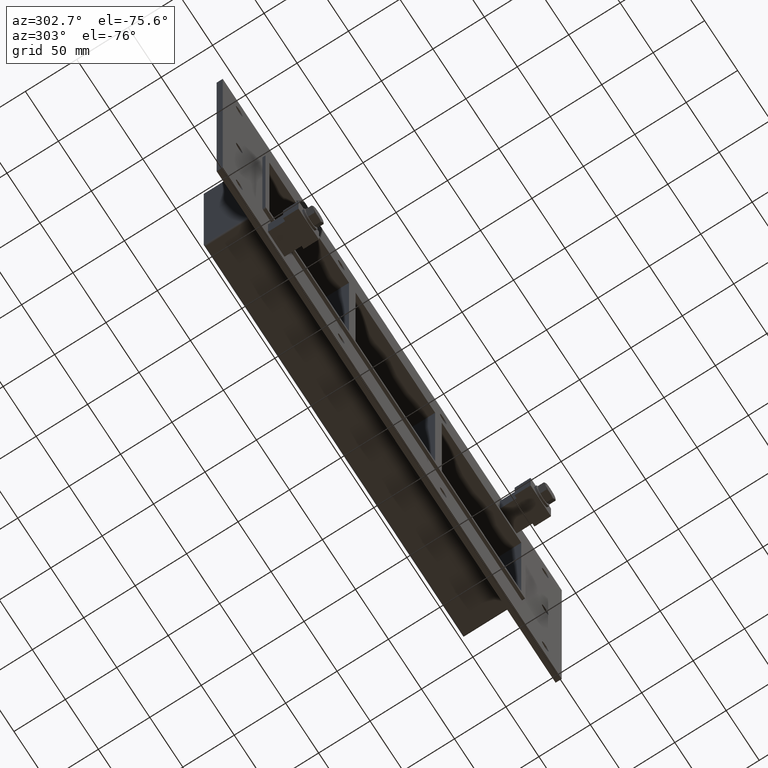
[diagram: clean part render]
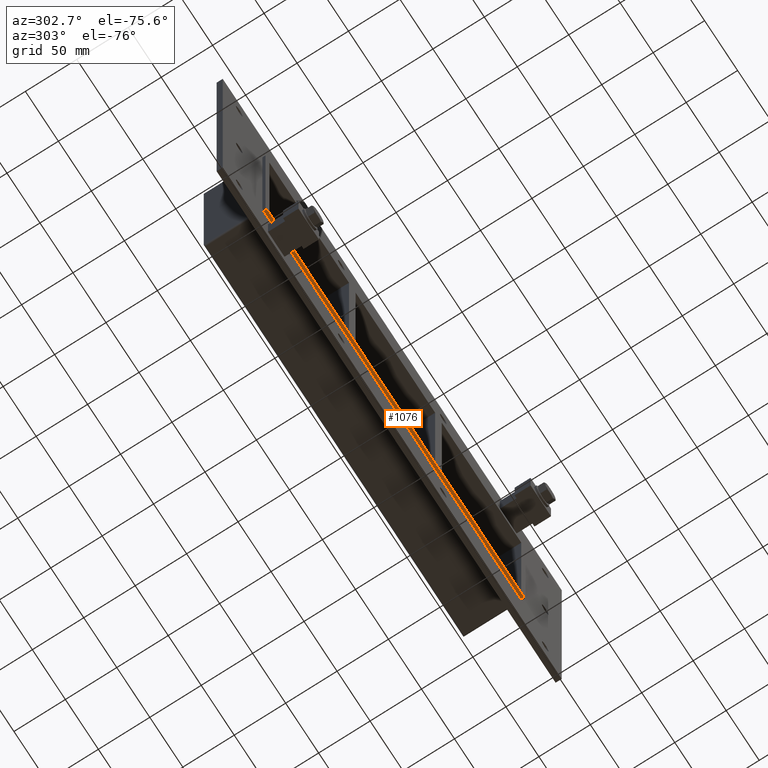
[diagram: same view with one face highlighted and labeled with its STEP entity id]
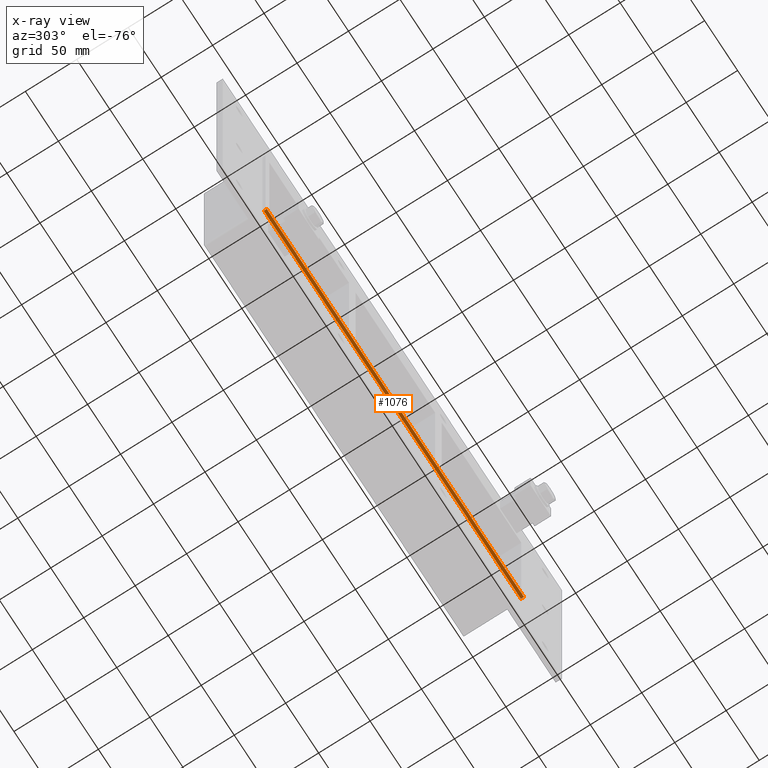
[diagram: x-ray of the same camera — body ghosted, the highlighted face saturated]
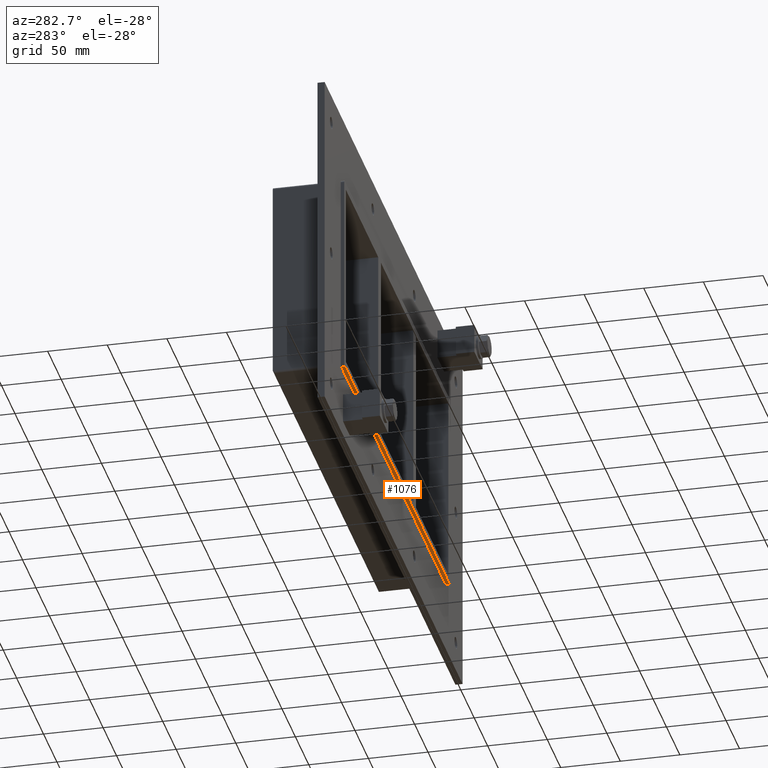
[diagram: same view with one face highlighted and labeled with its STEP entity id]
A machine part, auxiliary view. The second image highlights one B-rep face of the part: STEP entity #1076.
The next image is the same camera in x-ray: the body ghosted, the highlighted face saturated — about 0% of this face is hidden behind the body in this view.
A second angle (auxiliary view) of the same face is appended — the face is thin or edge-on in the first view.
In plain terms, the highlighted planar face has unit normal (0, 0, -1).
Its self-contained STEP definition (entity closure, byte-faithful):
#921=CARTESIAN_POINT('',(194.75,0.0,-85.750000000000028));
#922=VERTEX_POINT('',#921);
#930=CARTESIAN_POINT('',(-194.75000000000009,0.0,-85.750000000000028));
#931=VERTEX_POINT('',#930);
#932=CARTESIAN_POINT('',(-194.75000000000006,0.0,-85.750000000000028));
#933=DIRECTION('',(1.0,0.0,0.0));
#934=VECTOR('',#933,389.50000000000006);
#935=LINE('',#932,#934);
#936=EDGE_CURVE('',#931,#922,#935,.T.);
#1046=CARTESIAN_POINT('',(196.75,0.0,-85.750000000000028));
#1047=DIRECTION('',(0.0,0.0,-1.0));
#1048=DIRECTION('',(-1.0,0.0,0.0));
#1049=AXIS2_PLACEMENT_3D('',#1046,#1047,#1048);
#1050=PLANE('',#1049);
#1051=ORIENTED_EDGE('',*,*,#936,.T.);
#1052=CARTESIAN_POINT('',(194.75,-3.0,-85.750000000000028));
#1053=VERTEX_POINT('',#1052);
#1054=CARTESIAN_POINT('',(194.75,-3.0,-85.750000000000028));
#1055=DIRECTION('',(0.0,1.0,0.0));
#1056=VECTOR('',#1055,3.0);
#1057=LINE('',#1054,#1056);
#1058=EDGE_CURVE('',#1053,#922,#1057,.T.);
#1059=ORIENTED_EDGE('',*,*,#1058,.F.);
#1060=CARTESIAN_POINT('',(-194.75000000000006,-3.0,-85.750000000000028));
#1061=VERTEX_POINT('',#1060);
#1062=CARTESIAN_POINT('',(-194.75000000000006,-3.0,-85.750000000000028));
#1063=DIRECTION('',(1.0,0.0,0.0));
#1064=VECTOR('',#1063,389.50000000000006);
#1065=LINE('',#1062,#1064);
#1066=EDGE_CURVE('',#1061,#1053,#1065,.T.);
#1067=ORIENTED_EDGE('',*,*,#1066,.F.);
#1068=CARTESIAN_POINT('',(-194.75000000000009,0.0,-85.750000000000028));
#1069=DIRECTION('',(0.0,-1.0,0.0));
#1070=VECTOR('',#1069,3.0);
#1071=LINE('',#1068,#1070);
#1072=EDGE_CURVE('',#931,#1061,#1071,.T.);
#1073=ORIENTED_EDGE('',*,*,#1072,.F.);
#1074=EDGE_LOOP('',(#1051,#1059,#1067,#1073));
#1075=FACE_OUTER_BOUND('',#1074,.T.);
#1076=ADVANCED_FACE('',(#1075),#1050,.T.);